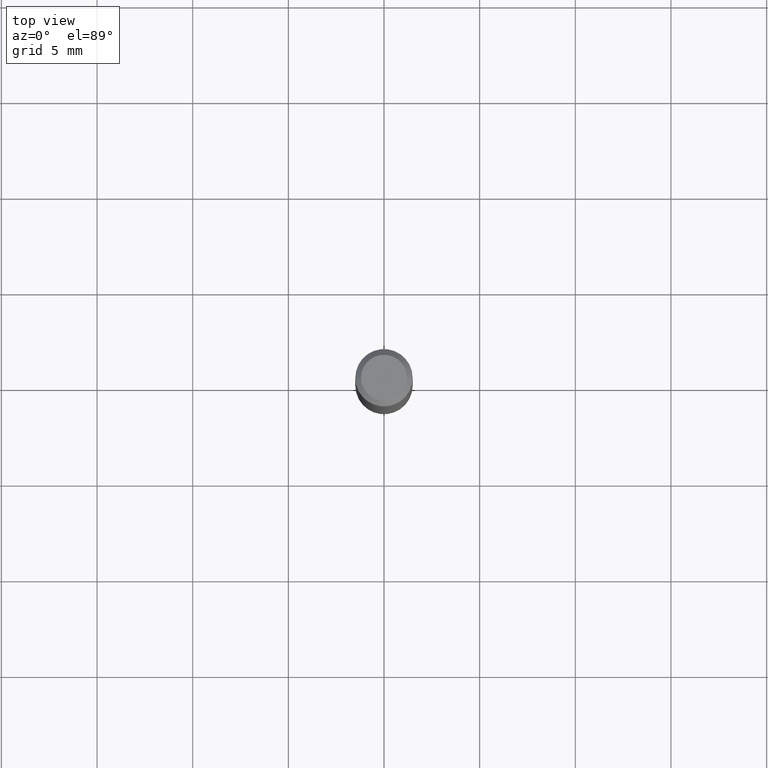
[diagram: clean part render]
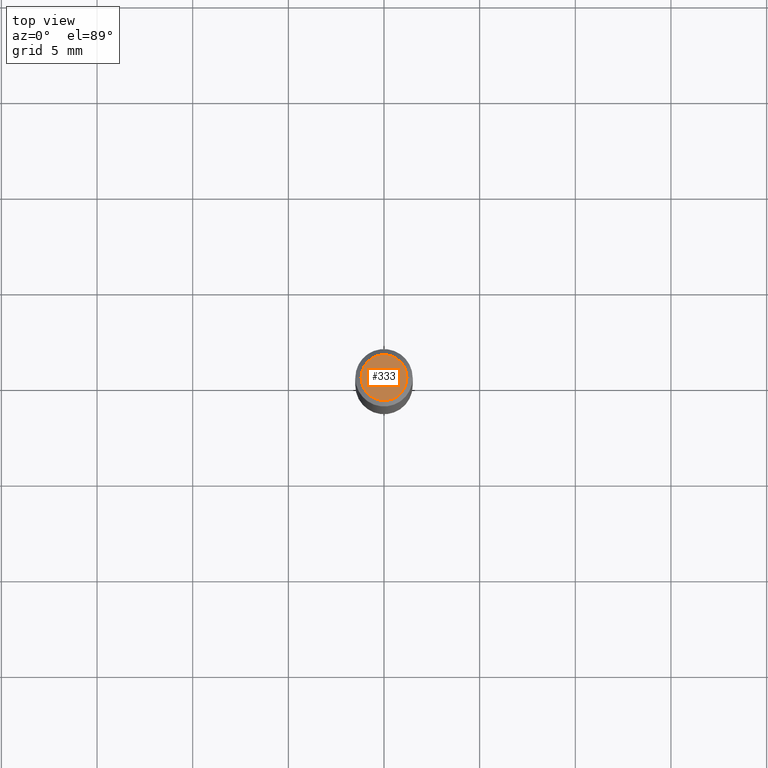
[diagram: same view with one face highlighted and labeled with its STEP entity id]
A machine part, top view. The second image highlights one B-rep face of the part: STEP entity #333.
In plain terms, the highlighted planar face has unit normal (0, -0, -1).
Its self-contained STEP definition (entity closure, byte-faithful):
#4 = CIRCLE ( 'NONE', #134, 0.04724000000000000421 ) ;
#20 = AXIS2_PLACEMENT_3D ( 'NONE', #68, #125, #269 ) ;
#68 = CARTESIAN_POINT ( 'NONE',  ( 4.132873053354867254E-48, -5.900647395337818946E-34, -1.690012582823346072E-19 ) ) ;
#96 = DIRECTION ( 'NONE',  ( -2.445468806185136597E-29, 3.491481338843145583E-15, 1.000000000000000000 ) ) ;
#125 = DIRECTION ( 'NONE',  ( 2.438088387897960049E-29, -3.491481338843145188E-15, -1.000000000000000000 ) ) ;
#134 = AXIS2_PLACEMENT_3D ( 'NONE', #242, #357, #280 ) ;
#135 = CARTESIAN_POINT ( 'NONE',  ( 8.265746106709734507E-48, -1.180129479067563789E-33, -3.380025165646692144E-19 ) ) ;
#168 = CARTESIAN_POINT ( 'NONE',  ( -0.04724000000000000421, 3.504923541997677355E-16, -3.380025165670481712E-19 ) ) ;
#188 = ORIENTED_EDGE ( 'NONE', *, *, #412, .T. ) ;
#194 = EDGE_CURVE ( 'NONE', #320, #258, #4, .T. ) ;
#202 = EDGE_LOOP ( 'NONE', ( #188, #388 ) ) ;
#204 = CARTESIAN_POINT ( 'NONE',  ( 0.04724000000000000421, -3.852183633974369345E-16, -3.380025165621689721E-19 ) ) ;
#209 = DIRECTION ( 'NONE',  ( 1.000000000000000000, -6.982962677686266711E-15, 4.876185090822587894E-29 ) ) ;
#242 = CARTESIAN_POINT ( 'NONE',  ( 8.265746106709734507E-48, -1.180129479067563789E-33, -3.380025165646692144E-19 ) ) ;
#258 = VERTEX_POINT ( 'NONE', #168 ) ;
#269 = DIRECTION ( 'NONE',  ( -1.000000000000000000, 6.982962677686265922E-15, -4.876176775795935793E-29 ) ) ;
#280 = DIRECTION ( 'NONE',  ( 1.000000000000000000, -6.982962677686266711E-15, 4.876185090822587894E-29 ) ) ;
#281 = FACE_OUTER_BOUND ( 'NONE', #202, .T. ) ;
#308 = PLANE ( 'NONE',  #20 ) ;
#320 = VERTEX_POINT ( 'NONE', #204 ) ;
#333 = ADVANCED_FACE ( 'NONE', ( #281 ), #308, .F. ) ;
#334 = AXIS2_PLACEMENT_3D ( 'NONE', #135, #96, #209 ) ;
#357 = DIRECTION ( 'NONE',  ( -2.445468806185136597E-29, 3.491481338843145583E-15, 1.000000000000000000 ) ) ;
#384 = CIRCLE ( 'NONE', #334, 0.04724000000000000421 ) ;
#388 = ORIENTED_EDGE ( 'NONE', *, *, #194, .T. ) ;
#412 = EDGE_CURVE ( 'NONE', #258, #320, #384, .T. ) ;